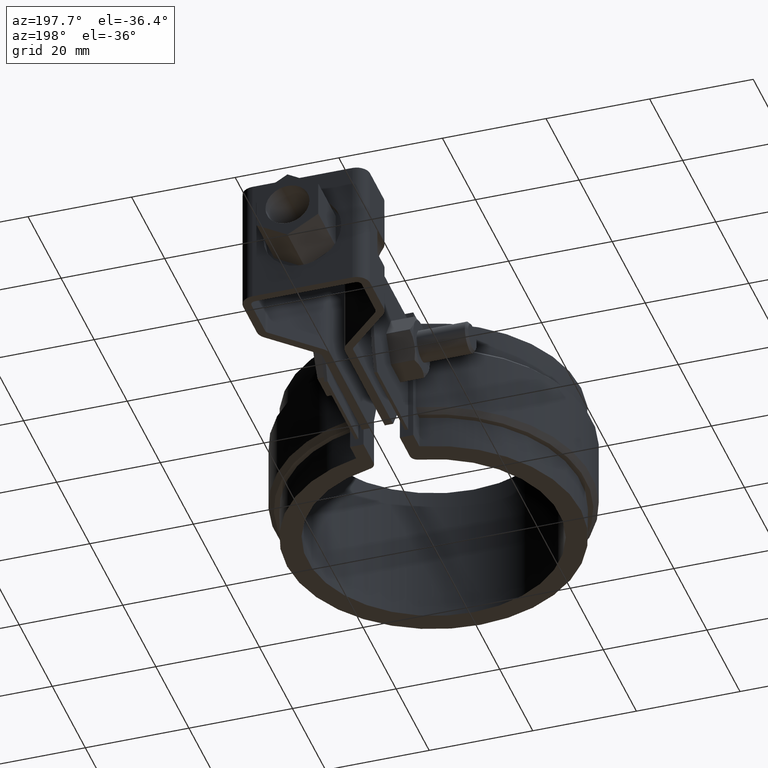
[diagram: clean part render]
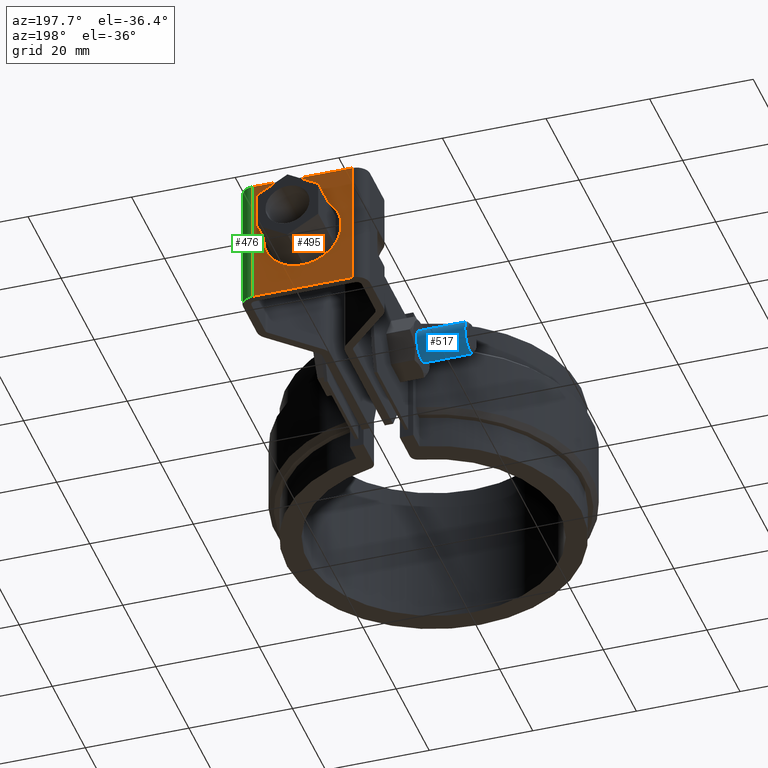
[diagram: same view with three faces highlighted in distinct colors, each labeled with its STEP entity id]
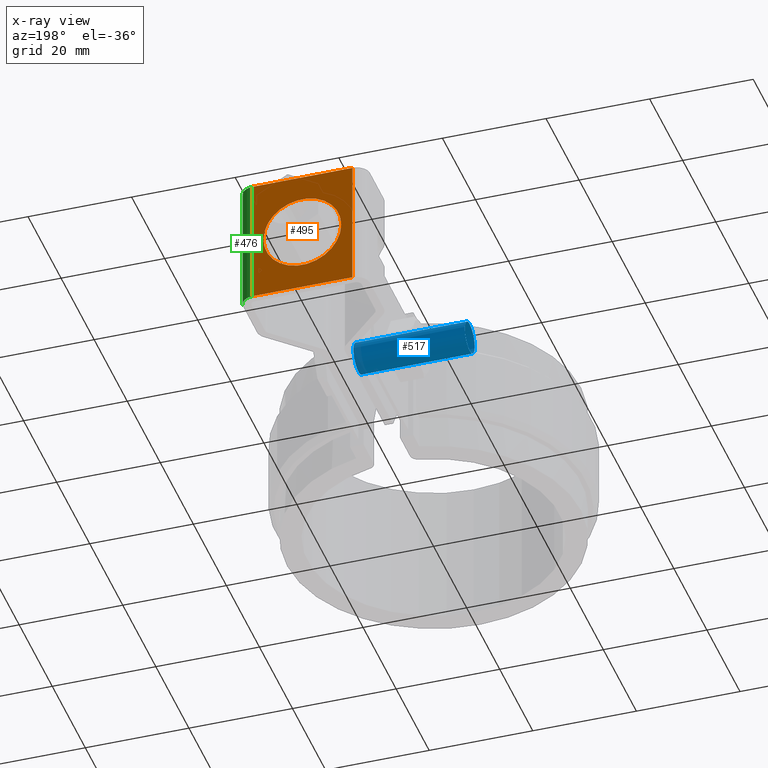
[diagram: x-ray of the same camera — body ghosted, the three highlighted faces saturated]
A machine part, auxiliary view with three faces highlighted in distinct colors.
The next image is the same camera in x-ray (body ghosted, the three faces saturated) — at least one of them is partly hidden behind the body in this view.
Their STEP definitions:

[orange] entity #495 — the highlighted planar face has unit normal (-0, 1, -0).
#495 = ADVANCED_FACE( '', ( #927, #928 ), #929, .T. );
#927 = FACE_BOUND( '', #2060, .T. );
#928 = FACE_OUTER_BOUND( '', #2061, .T. );
#929 = PLANE( '', #2062 );
#2060 = EDGE_LOOP( '', ( #5059 ) );
#2061 = EDGE_LOOP( '', ( #5060, #5061, #5062, #5063 ) );
#2062 = AXIS2_PLACEMENT_3D( '', #5064, #5065, #5066 );
#5059 = ORIENTED_EDGE( '', *, *, #6033, .F. );
#5060 = ORIENTED_EDGE( '', *, *, #5946, .T. );
#5061 = ORIENTED_EDGE( '', *, *, #5998, .T. );
#5062 = ORIENTED_EDGE( '', *, *, #6045, .F. );
#5063 = ORIENTED_EDGE( '', *, *, #5956, .F. );
#5064 = CARTESIAN_POINT( '', ( -9.65000000065213, 79.4045271144796, -7.16188497396075E-008 ) );
#5065 = DIRECTION( '', ( -3.46787463341350E-012, 1.00000000000000, -5.08856068393042E-010 ) );
#5066 = DIRECTION( '', ( -1.00000000000000, -3.46787463237663E-012, 2.03765905737930E-012 ) );
#5946 = EDGE_CURVE( '', #6909, #6907, #6910, .T. );
#5956 = EDGE_CURVE( '', #6909, #6925, #6928, .T. );
#5998 = EDGE_CURVE( '', #6907, #6994, #6996, .T. );
#6033 = EDGE_CURVE( '', #7054, #7054, #7055, .T. );
#6045 = EDGE_CURVE( '', #6925, #6994, #7071, .T. );
#6907 = VERTEX_POINT( '', #10532 );
#6909 = VERTEX_POINT( '', #10534 );
#6910 = LINE( '', #10535, #10536 );
#6925 = VERTEX_POINT( '', #10555 );
#6928 = LINE( '', #10559, #10560 );
#6994 = VERTEX_POINT( '', #10677 );
#6996 = LINE( '', #10679, #10680 );
#7054 = VERTEX_POINT( '', #10781 );
#7055 = CIRCLE( '', #10782, 7.50000000000000 );
#7071 = LINE( '', #10807, #10808 );
#10532 = CARTESIAN_POINT( '', ( 9.64999999934786, 79.4045271145469, -7.16581516346793E-008 ) );
#10534 = CARTESIAN_POINT( '', ( -9.65000000065213, 79.4045271144796, -7.16188497396075E-008 ) );
#10535 = CARTESIAN_POINT( '', ( -9.65000000065213, 79.4045271144796, -7.16188497396075E-008 ) );
#10536 = VECTOR( '', #11617, 1000.00000000000 );
#10555 = CARTESIAN_POINT( '', ( -9.65000000070308, 79.4045271017582, -25.0000000716189 ) );
#10559 = CARTESIAN_POINT( '', ( -9.65000000065213, 79.4045271144796, -7.16188497396075E-008 ) );
#10560 = VECTOR( '', #11635, 1000.00000000000 );
#10677 = CARTESIAN_POINT( '', ( 9.64999999929691, 79.4045271018254, -25.0000000716581 ) );
#10679 = CARTESIAN_POINT( '', ( 9.64999999934786, 79.4045271145469, -7.16581516346793E-008 ) );
#10680 = VECTOR( '', #11697, 1000.00000000000 );
#10781 = CARTESIAN_POINT( '', ( 7.49999999932240, 79.4045371081783, -12.5000000716538 ) );
#10782 = AXIS2_PLACEMENT_3D( '', #11754, #11755, #11756 );
#10807 = CARTESIAN_POINT( '', ( -9.65000000070308, 79.4045271017582, -25.0000000716189 ) );
#10808 = VECTOR( '', #11772, 1000.00000000000 );
#11617 = DIRECTION( '', ( 1.00000000000000, 3.46787463237663E-012, -2.03765905737930E-012 ) );
#11635 = DIRECTION( '', ( -2.03765905561465E-012, -5.08856068393049E-010, -1.00000000000000 ) );
#11697 = DIRECTION( '', ( -2.03765905561465E-012, -5.08856068393049E-010, -1.00000000000000 ) );
#11754 = CARTESIAN_POINT( '', ( -6.77600603075779E-010, 79.4045371081523, -12.5000000716385 ) );
#11755 = DIRECTION( '', ( -3.46787463341350E-012, 1.00000000000000, -5.08856068393042E-010 ) );
#11756 = DIRECTION( '', ( 1.00000000000000, 3.46787463237660E-012, -2.03772028769699E-012 ) );
#11772 = DIRECTION( '', ( 1.00000000000000, 3.46787463237663E-012, -2.03765905737930E-012 ) );

[blue] entity #517 — the highlighted cylindrical surface (bore or boss wall) has radius 3 mm, axis along (1, -0, -0).
#517 = ADVANCED_FACE( '', ( #979, #980 ), #981, .T. );
#979 = FACE_OUTER_BOUND( '', #2112, .T. );
#980 = FACE_OUTER_BOUND( '', #2113, .T. );
#981 = CYLINDRICAL_SURFACE( '', #2114, 3.00000000000000 );
#2112 = EDGE_LOOP( '', ( #5245 ) );
#2113 = EDGE_LOOP( '', ( #5246 ) );
#2114 = AXIS2_PLACEMENT_3D( '', #5247, #5248, #5249 );
#5245 = ORIENTED_EDGE( '', *, *, #6082, .T. );
#5246 = ORIENTED_EDGE( '', *, *, #6083, .T. );
#5247 = CARTESIAN_POINT( '', ( 12.8770244734529, 38.9045271556075, -12.5000000000000 ) );
#5248 = DIRECTION( '', ( 1.00000000000000, -1.30506089359675E-053, -4.17619485952193E-053 ) );
#5249 = DIRECTION( '', ( -4.17619485952193E-053, 3.00462919747432E-016, -1.00000000000000 ) );
#6082 = EDGE_CURVE( '', #7130, #7130, #7131, .T. );
#6083 = EDGE_CURVE( '', #7132, #7132, #7133, .T. );
#7130 = VERTEX_POINT( '', #10894 );
#7131 = CIRCLE( '', #10895, 3.00000000000000 );
#7132 = VERTEX_POINT( '', #10896 );
#7133 = B_SPLINE_CURVE_WITH_KNOTS( '', 3, ( #10897, #10898, #10899, #10900, #10901, #10902, #10903, #10904, #10905, #10906, #10907, #10908, #10909, #10910, #10911, #10912, #10913, #10914, #10915, #10916, #10917, #10918, #10919, #10920, #10921, #10922, #10923, #10924, #10925, #10926, #10927, #10928, #10929, #10930 ), .UNSPECIFIED., .T., .F., ( 2, 2, 2, 2, 2, 2, 2, 2, 2, 2, 2, 2, 2, 2, 2, 2, 2, 2, 2 ), ( -0.0625000000000000, 0.000000000000000, 0.0625000000000000, 0.125000000000000, 0.187500000000000, 0.250000000000000, 0.312500000000000, 0.375000000000000, 0.437500000000000, 0.500000000000000, 0.562500000000000, 0.625000000000000, 0.687500000000000, 0.750000000000000, 0.812500000000000, 0.875000000000000, 0.937500000000000, 1.00000000000000, 1.06250000000000 ), .UNSPECIFIED. );
#10894 = CARTESIAN_POINT( '', ( -19.4000000000000, 38.9045271556075, -9.50000000000000 ) );
#10895 = AXIS2_PLACEMENT_3D( '', #11827, #11828, #11829 );
#10896 = CARTESIAN_POINT( '', ( 2.10000000000000, 38.9045271556075, -9.50000000000000 ) );
#10897 = CARTESIAN_POINT( '', ( 2.10000000000000, 38.5118280739088, -9.50000000000000 ) );
#10898 = CARTESIAN_POINT( '', ( 2.10000000000000, 39.2972262373062, -9.50000000000000 ) );
#10899 = CARTESIAN_POINT( '', ( 2.10000000000000, 39.6897708086853, -9.57808196999506 ) );
#10900 = CARTESIAN_POINT( '', ( 2.10000000000000, 40.4153840967202, -9.87864083493723 ) );
#10901 = CARTESIAN_POINT( '', ( 2.10000000000000, 40.7481673155322, -10.1009994728055 ) );
#10902 = CARTESIAN_POINT( '', ( 2.10000000000000, 41.3035276828020, -10.6563598400753 ) );
#10903 = CARTESIAN_POINT( '', ( 2.10000000000000, 41.5258863206703, -10.9891430588873 ) );
#10904 = CARTESIAN_POINT( '', ( 2.10000000000000, 41.8264451856125, -11.7147563469222 ) );
#10905 = CARTESIAN_POINT( '', ( 2.10000000000000, 41.9045271556075, -12.1073009183013 ) );
#10906 = CARTESIAN_POINT( '', ( 2.10000000000000, 41.9045271556075, -12.8926990816987 ) );
#10907 = CARTESIAN_POINT( '', ( 2.10000000000000, 41.8264451856124, -13.2852436530778 ) );
#10908 = CARTESIAN_POINT( '', ( 2.10000000000000, 41.5258863206703, -14.0108569411127 ) );
#10909 = CARTESIAN_POINT( '', ( 2.10000000000000, 41.3035276828020, -14.3436401599247 ) );
#10910 = CARTESIAN_POINT( '', ( 2.10000000000000, 40.7481673155322, -14.8990005271945 ) );
#10911 = CARTESIAN_POINT( '', ( 2.10000000000000, 40.4153840967202, -15.1213591650628 ) );
#10912 = CARTESIAN_POINT( '', ( 2.10000000000000, 39.6897708086853, -15.4219180300049 ) );
#10913 = CARTESIAN_POINT( '', ( 2.10000000000000, 39.2972262373062, -15.5000000000000 ) );
#10914 = CARTESIAN_POINT( '', ( 2.10000000000000, 38.5118280739088, -15.5000000000000 ) );
#10915 = CARTESIAN_POINT( '', ( 2.10000000000000, 38.1192835025297, -15.4219180300049 ) );
#10916 = CARTESIAN_POINT( '', ( 2.10000000000000, 37.3936702144948, -15.1213591650628 ) );
#10917 = CARTESIAN_POINT( '', ( 2.10000000000000, 37.0608869956828, -14.8990005271945 ) );
#10918 = CARTESIAN_POINT( '', ( 2.10000000000000, 36.5055266284130, -14.3436401599247 ) );
#10919 = CARTESIAN_POINT( '', ( 2.10000000000000, 36.2831679905447, -14.0108569411127 ) );
#10920 = CARTESIAN_POINT( '', ( 2.10000000000000, 35.9826091256025, -13.2852436530778 ) );
#10921 = CARTESIAN_POINT( '', ( 2.10000000000000, 35.9045271556075, -12.8926990816987 ) );
#10922 = CARTESIAN_POINT( '', ( 2.10000000000000, 35.9045271556075, -12.1073009183013 ) );
#10923 = CARTESIAN_POINT( '', ( 2.10000000000000, 35.9826091256026, -11.7147563469222 ) );
#10924 = CARTESIAN_POINT( '', ( 2.10000000000000, 36.2831679905447, -10.9891430588873 ) );
#10925 = CARTESIAN_POINT( '', ( 2.10000000000000, 36.5055266284130, -10.6563598400753 ) );
#10926 = CARTESIAN_POINT( '', ( 2.10000000000000, 37.0608869956828, -10.1009994728055 ) );
#10927 = CARTESIAN_POINT( '', ( 2.10000000000000, 37.3936702144948, -9.87864083493723 ) );
#10928 = CARTESIAN_POINT( '', ( 2.10000000000000, 38.1192835025297, -9.57808196999505 ) );
#10929 = CARTESIAN_POINT( '', ( 2.10000000000000, 38.5118280739088, -9.50000000000000 ) );
#10930 = CARTESIAN_POINT( '', ( 2.10000000000000, 39.2972262373062, -9.50000000000000 ) );
#11827 = CARTESIAN_POINT( '', ( -19.4000000000000, 38.9045271556075, -12.5000000000000 ) );
#11828 = DIRECTION( '', ( 1.00000000000000, -1.30506089359675E-053, -4.17619485952193E-053 ) );
#11829 = DIRECTION( '', ( 4.17619485952193E-053, -3.00462919747432E-016, 1.00000000000000 ) );

[green] entity #476 — the highlighted cylindrical surface (edge-blend (fillet) strip) has radius 2.6 mm, axis along (0, 0, 1).
#476 = ADVANCED_FACE( '', ( #884 ), #885, .T. );
#884 = FACE_OUTER_BOUND( '', #2017, .T. );
#885 = CYLINDRICAL_SURFACE( '', #2018, 2.60000000000000 );
#2017 = EDGE_LOOP( '', ( #4913, #4914, #4915, #4916 ) );
#2018 = AXIS2_PLACEMENT_3D( '', #4917, #4918, #4919 );
#4913 = ORIENTED_EDGE( '', *, *, #5997, .T. );
#4914 = ORIENTED_EDGE( '', *, *, #5998, .F. );
#4915 = ORIENTED_EDGE( '', *, *, #5945, .F. );
#4916 = ORIENTED_EDGE( '', *, *, #5985, .T. );
#4917 = CARTESIAN_POINT( '', ( 9.64999999935687, 76.8045271145469, -7.03351266118091E-008 ) );
#4918 = DIRECTION( '', ( 2.03765905561465E-012, 5.08856068393049E-010, 1.00000000000000 ) );
#4919 = DIRECTION( '', ( -3.46775217277812E-012, 1.00000000000000, -5.08856068393042E-010 ) );
#5945 = EDGE_CURVE( '', #6905, #6907, #6908, .T. );
#5985 = EDGE_CURVE( '', #6905, #6975, #6977, .T. );
#5997 = EDGE_CURVE( '', #6975, #6994, #6995, .T. );
#5998 = EDGE_CURVE( '', #6907, #6994, #6996, .T. );
#6905 = VERTEX_POINT( '', #10529 );
#6907 = VERTEX_POINT( '', #10532 );
#6908 = CIRCLE( '', #10533, 2.59999999999999 );
#6975 = VERTEX_POINT( '', #10647 );
#6977 = LINE( '', #10650, #10651 );
#6994 = VERTEX_POINT( '', #10677 );
#6995 = CIRCLE( '', #10678, 2.59999999999999 );
#6996 = LINE( '', #10679, #10680 );
#10529 = CARTESIAN_POINT( '', ( 12.2499999993569, 76.8045271145559, -7.03404279267517E-008 ) );
#10532 = CARTESIAN_POINT( '', ( 9.64999999934786, 79.4045271145469, -7.16581516346793E-008 ) );
#10533 = AXIS2_PLACEMENT_3D( '', #11614, #11615, #11616 );
#10647 = CARTESIAN_POINT( '', ( 12.2499999993059, 76.8045271018345, -25.0000000703404 ) );
#10650 = CARTESIAN_POINT( '', ( 12.2499999993569, 76.8045271145559, -7.03404279267517E-008 ) );
#10651 = VECTOR( '', #11678, 1000.00000000000 );
#10677 = CARTESIAN_POINT( '', ( 9.64999999929691, 79.4045271018254, -25.0000000716581 ) );
#10678 = AXIS2_PLACEMENT_3D( '', #11694, #11695, #11696 );
#10679 = CARTESIAN_POINT( '', ( 9.64999999934786, 79.4045271145469, -7.16581516346793E-008 ) );
#10680 = VECTOR( '', #11697, 1000.00000000000 );
#11614 = CARTESIAN_POINT( '', ( 9.64999999935687, 76.8045271145469, -7.03351266118091E-008 ) );
#11615 = DIRECTION( '', ( 2.03765905561465E-012, 5.08856068393049E-010, 1.00000000000000 ) );
#11616 = DIRECTION( '', ( 1.00000000000000, 3.46775217174124E-012, -2.03765905737924E-012 ) );
#11678 = DIRECTION( '', ( -2.03765905561465E-012, -5.08856068393049E-010, -1.00000000000000 ) );
#11694 = CARTESIAN_POINT( '', ( 9.64999999930593, 76.8045271018254, -25.0000000703351 ) );
#11695 = DIRECTION( '', ( 2.03765905561465E-012, 5.08856068393049E-010, 1.00000000000000 ) );
#11696 = DIRECTION( '', ( 1.00000000000000, 3.46775217174124E-012, -2.03765905737924E-012 ) );
#11697 = DIRECTION( '', ( -2.03765905561465E-012, -5.08856068393049E-010, -1.00000000000000 ) );